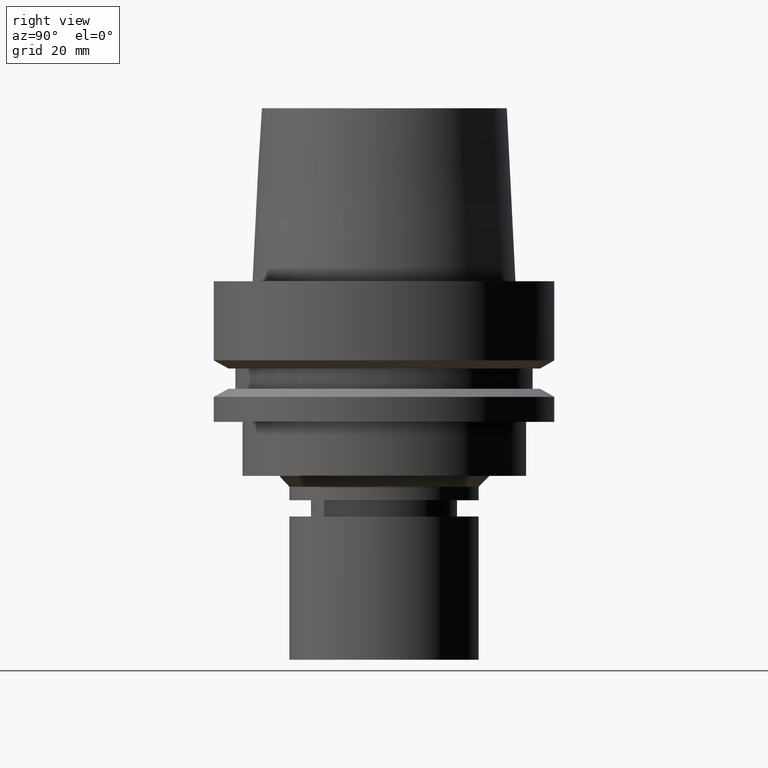
[diagram: clean part render]
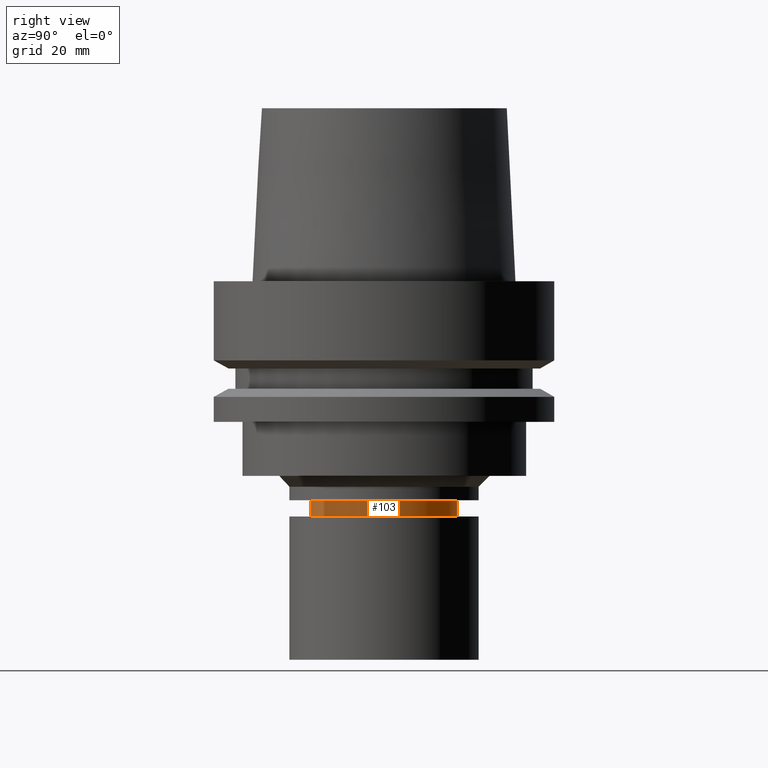
[diagram: same view with one face highlighted and labeled with its STEP entity id]
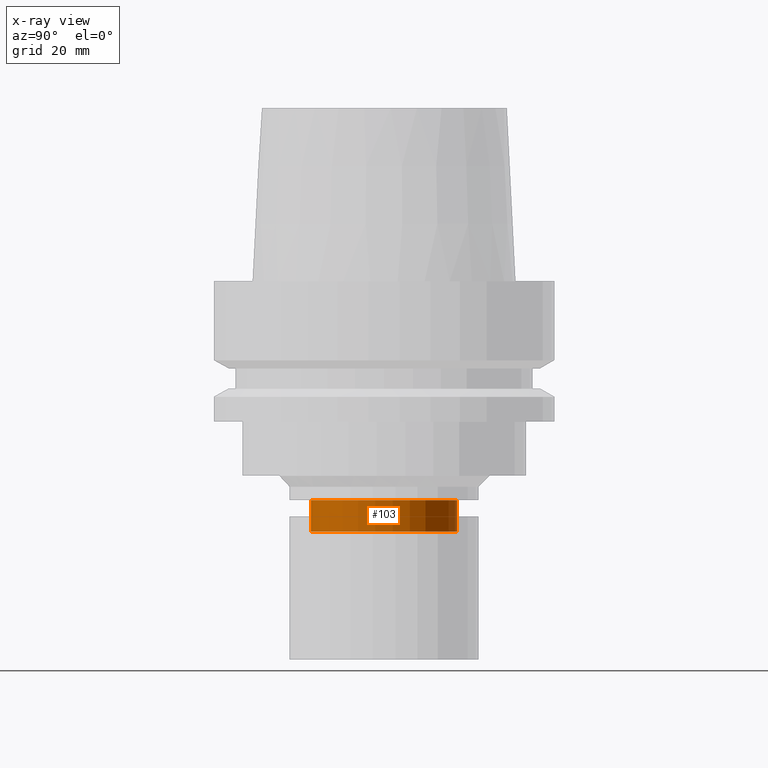
[diagram: x-ray of the same camera — body ghosted, the highlighted face saturated]
A machine part, right view. The second image highlights one B-rep face of the part: STEP entity #103.
The next image is the same camera in x-ray: the body ghosted, the highlighted face saturated — about 0% of this face is hidden behind the body in this view.
In plain terms, the highlighted cylindrical surface (bore or boss wall) has radius 13.5 mm, axis along (-0, -0, 1).
Its self-contained STEP definition (entity closure, byte-faithful):
#103=ADVANCED_FACE('Unnamed[1]',(#254,#255),#256,.T.);
#172=EDGE_CURVE('Unnamed[1]',#361,#361,#362,.T.);
#185=EDGE_CURVE('Unnamed[1]',#381,#381,#382,.T.);
#254=FACE_BOUND('',#462,.T.);
#255=FACE_BOUND('',#463,.T.);
#256=CYLINDRICAL_SURFACE('',#464,13.4999999999956);
#361=VERTEX_POINT('',#595);
#362=CIRCLE('',#596,13.5000000000005);
#381=VERTEX_POINT('',#620);
#382=CIRCLE('',#621,13.4999999999908);
#462=EDGE_LOOP('',(#687));
#463=EDGE_LOOP('',(#688));
#464=AXIS2_PLACEMENT_3D('',#689,#690,#691);
#595=CARTESIAN_POINT('',(2.83642434377412E-015,13.5000000000005,-46.3223248654052));
#596=AXIS2_PLACEMENT_3D('',#807,#808,#809);
#620=CARTESIAN_POINT('',(2.47990976827338E-015,13.4999999999908,-40.4999999999998));
#621=AXIS2_PLACEMENT_3D('',#830,#831,#832);
#687=ORIENTED_EDGE('',*,*,#185,.F.);
#688=ORIENTED_EDGE('',*,*,#172,.T.);
#689=CARTESIAN_POINT('',(2.65816705602375E-015,5.31633411204749E-015,-43.4111624327025));
#690=DIRECTION('',(-6.12323399573677E-017,-1.22464679914735E-016,1.0));
#691=DIRECTION('',(-1.23259516440783E-032,1.0,1.22464679914735E-016));
#807=CARTESIAN_POINT('',(2.83642434377412E-015,5.67284868754823E-015,-46.3223248654052));
#808=DIRECTION('',(-6.12323399573677E-017,-1.22464679914735E-016,1.0));
#809=DIRECTION('',(-1.23259516440783E-032,1.0,1.22464679914735E-016));
#830=CARTESIAN_POINT('',(2.47990976827338E-015,4.95981953654675E-015,-40.4999999999998));
#831=DIRECTION('',(-6.12323399573677E-017,-1.22464679914735E-016,1.0));
#832=DIRECTION('',(-1.23259516440783E-032,1.0,1.22464679914735E-016));